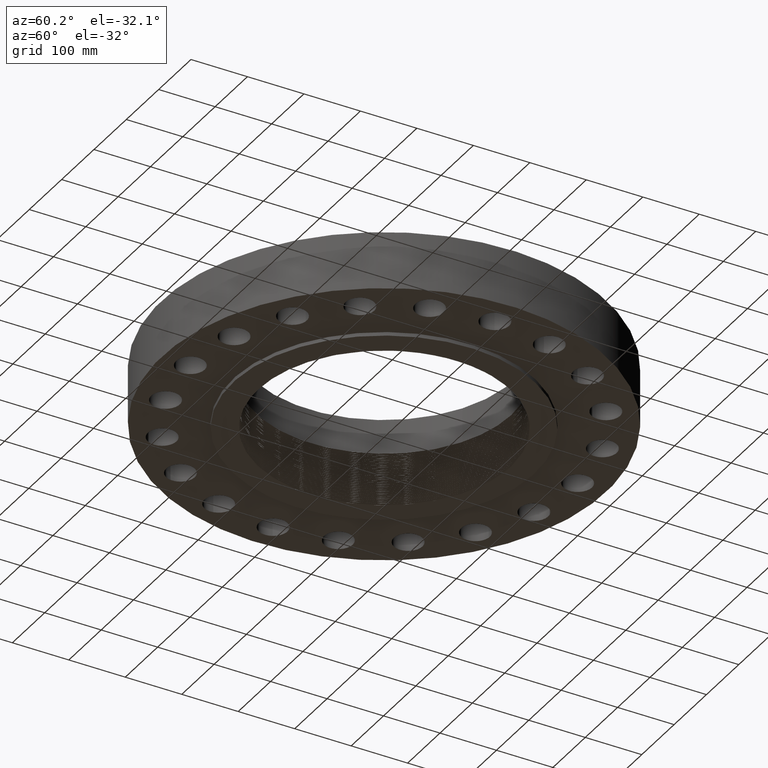
[diagram: clean part render]
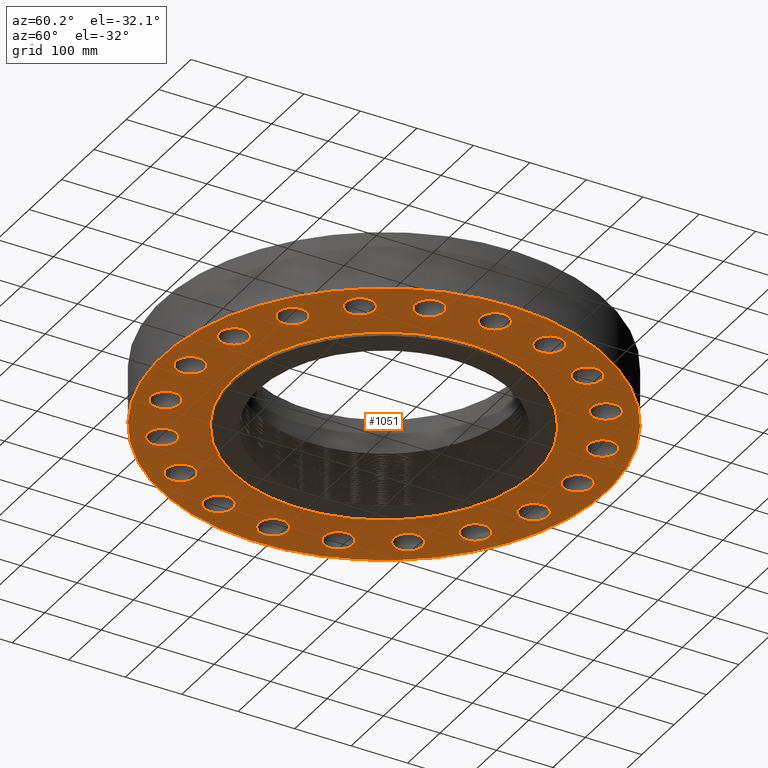
[diagram: same view with one face highlighted and labeled with its STEP entity id]
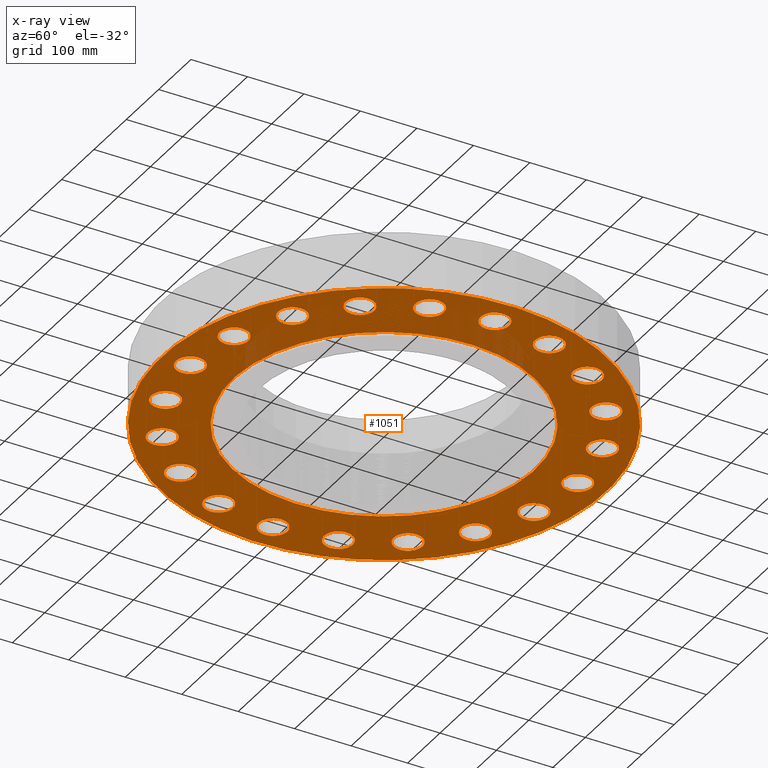
[diagram: x-ray of the same camera — body ghosted, the highlighted face saturated]
A machine part, auxiliary view. The second image highlights one B-rep face of the part: STEP entity #1051.
The next image is the same camera in x-ray: the body ghosted, the highlighted face saturated — about 0% of this face is hidden behind the body in this view.
In plain terms, the highlighted planar face has unit normal (0, 0, -1).
Its self-contained STEP definition (entity closure, byte-faithful):
#408=AXIS2_PLACEMENT_3D('Circle Axis2P3D',#406,#407,$) ;
#434=AXIS2_PLACEMENT_3D('Circle Axis2P3D',#432,#433,$) ;
#456=AXIS2_PLACEMENT_3D('Circle Axis2P3D',#454,#455,$) ;
#491=AXIS2_PLACEMENT_3D('Circle Axis2P3D',#489,#490,$) ;
#663=AXIS2_PLACEMENT_3D('Circle Axis2P3D',#661,#662,$) ;
#682=AXIS2_PLACEMENT_3D('Circle Axis2P3D',#680,#681,$) ;
#695=AXIS2_PLACEMENT_3D('Plane Axis2P3D',#692,#693,#694) ;
#711=AXIS2_PLACEMENT_3D('Circle Axis2P3D',#709,#710,$) ;
#720=AXIS2_PLACEMENT_3D('Circle Axis2P3D',#718,#719,$) ;
#729=AXIS2_PLACEMENT_3D('Circle Axis2P3D',#727,#728,$) ;
#738=AXIS2_PLACEMENT_3D('Circle Axis2P3D',#736,#737,$) ;
#747=AXIS2_PLACEMENT_3D('Circle Axis2P3D',#745,#746,$) ;
#756=AXIS2_PLACEMENT_3D('Circle Axis2P3D',#754,#755,$) ;
#765=AXIS2_PLACEMENT_3D('Circle Axis2P3D',#763,#764,$) ;
#774=AXIS2_PLACEMENT_3D('Circle Axis2P3D',#772,#773,$) ;
#783=AXIS2_PLACEMENT_3D('Circle Axis2P3D',#781,#782,$) ;
#792=AXIS2_PLACEMENT_3D('Circle Axis2P3D',#790,#791,$) ;
#801=AXIS2_PLACEMENT_3D('Circle Axis2P3D',#799,#800,$) ;
#810=AXIS2_PLACEMENT_3D('Circle Axis2P3D',#808,#809,$) ;
#819=AXIS2_PLACEMENT_3D('Circle Axis2P3D',#817,#818,$) ;
#828=AXIS2_PLACEMENT_3D('Circle Axis2P3D',#826,#827,$) ;
#837=AXIS2_PLACEMENT_3D('Circle Axis2P3D',#835,#836,$) ;
#846=AXIS2_PLACEMENT_3D('Circle Axis2P3D',#844,#845,$) ;
#855=AXIS2_PLACEMENT_3D('Circle Axis2P3D',#853,#854,$) ;
#864=AXIS2_PLACEMENT_3D('Circle Axis2P3D',#862,#863,$) ;
#873=AXIS2_PLACEMENT_3D('Circle Axis2P3D',#871,#872,$) ;
#882=AXIS2_PLACEMENT_3D('Circle Axis2P3D',#880,#881,$) ;
#891=AXIS2_PLACEMENT_3D('Circle Axis2P3D',#889,#890,$) ;
#900=AXIS2_PLACEMENT_3D('Circle Axis2P3D',#898,#899,$) ;
#909=AXIS2_PLACEMENT_3D('Circle Axis2P3D',#907,#908,$) ;
#918=AXIS2_PLACEMENT_3D('Circle Axis2P3D',#916,#917,$) ;
#927=AXIS2_PLACEMENT_3D('Circle Axis2P3D',#925,#926,$) ;
#936=AXIS2_PLACEMENT_3D('Circle Axis2P3D',#934,#935,$) ;
#945=AXIS2_PLACEMENT_3D('Circle Axis2P3D',#943,#944,$) ;
#954=AXIS2_PLACEMENT_3D('Circle Axis2P3D',#952,#953,$) ;
#963=AXIS2_PLACEMENT_3D('Circle Axis2P3D',#961,#962,$) ;
#972=AXIS2_PLACEMENT_3D('Circle Axis2P3D',#970,#971,$) ;
#981=AXIS2_PLACEMENT_3D('Circle Axis2P3D',#979,#980,$) ;
#990=AXIS2_PLACEMENT_3D('Circle Axis2P3D',#988,#989,$) ;
#999=AXIS2_PLACEMENT_3D('Circle Axis2P3D',#997,#998,$) ;
#1008=AXIS2_PLACEMENT_3D('Circle Axis2P3D',#1006,#1007,$) ;
#1017=AXIS2_PLACEMENT_3D('Circle Axis2P3D',#1015,#1016,$) ;
#1026=AXIS2_PLACEMENT_3D('Circle Axis2P3D',#1024,#1025,$) ;
#1035=AXIS2_PLACEMENT_3D('Circle Axis2P3D',#1033,#1034,$) ;
#1044=AXIS2_PLACEMENT_3D('Circle Axis2P3D',#1042,#1043,$) ;
#401=CARTESIAN_POINT('Vertex',(12.6224174382,0.479425538606,0.)) ;
#406=CARTESIAN_POINT('Axis2P3D Location',(13.5000000001,0.,0.)) ;
#410=CARTESIAN_POINT('Vertex',(14.3775825619,-0.479425538606,0.)) ;
#432=CARTESIAN_POINT('Axis2P3D Location',(13.5000000001,0.,0.)) ;
#454=CARTESIAN_POINT('Axis2P3D Location',(0.,0.,1.67844740731E-015)) ;
#458=CARTESIAN_POINT('Vertex',(-7.43109584839,-13.6025297094,1.67844740731E-015)) ;
#460=CARTESIAN_POINT('Vertex',(7.43109584839,13.6025297094,1.67844740731E-015)) ;
#489=CARTESIAN_POINT('Axis2P3D Location',(0.,0.,1.67844740731E-015)) ;
#658=CARTESIAN_POINT('Vertex',(-5.03396815536,-9.21461689989,1.1189649382E-015)) ;
#661=CARTESIAN_POINT('Axis2P3D Location',(0.,0.,1.1189649382E-015)) ;
#665=CARTESIAN_POINT('Vertex',(5.03396815536,9.21461689989,1.1189649382E-015)) ;
#680=CARTESIAN_POINT('Axis2P3D Location',(0.,0.,1.1189649382E-015)) ;
#692=CARTESIAN_POINT('Axis2P3D Location',(0.,10.5,0.)) ;
#709=CARTESIAN_POINT('Axis2P3D Location',(12.83926297,-4.17172942408,0.)) ;
#713=CARTESIAN_POINT('Vertex',(12.1527829949,-3.44458071592,0.)) ;
#715=CARTESIAN_POINT('Vertex',(13.5257429451,-4.89887813224,0.)) ;
#718=CARTESIAN_POINT('Axis2P3D Location',(12.83926297,-4.17172942408,0.)) ;
#727=CARTESIAN_POINT('Axis2P3D Location',(10.9217294241,-7.93510090598,0.)) ;
#731=CARTESIAN_POINT('Vertex',(10.4935494787,-7.03140741016,0.)) ;
#733=CARTESIAN_POINT('Vertex',(11.3499093695,-8.8387944018,-3.35689481461E-015)) ;
#736=CARTESIAN_POINT('Axis2P3D Location',(10.9217294241,-7.93510090598,0.)) ;
#745=CARTESIAN_POINT('Axis2P3D Location',(7.93510090598,-10.9217294241,0.)) ;
#749=CARTESIAN_POINT('Vertex',(7.8071342267,-9.9299509564,0.)) ;
#751=CARTESIAN_POINT('Vertex',(8.06306758526,-11.9135078918,0.)) ;
#754=CARTESIAN_POINT('Axis2P3D Location',(7.93510090598,-10.9217294241,0.)) ;
#763=CARTESIAN_POINT('Axis2P3D Location',(4.17172942408,-12.83926297,0.)) ;
#767=CARTESIAN_POINT('Vertex',(4.35650228106,-11.856481717,0.)) ;
#769=CARTESIAN_POINT('Vertex',(3.9869565671,-13.8220442231,0.)) ;
#772=CARTESIAN_POINT('Axis2P3D Location',(4.17172942408,-12.83926297,0.)) ;
#781=CARTESIAN_POINT('Axis2P3D Location',(2.09805925913E-015,-13.5000000001,0.)) ;
#785=CARTESIAN_POINT('Vertex',(0.479425538606,-12.6224174382,0.)) ;
#787=CARTESIAN_POINT('Vertex',(-0.479425538606,-14.3775825619,0.)) ;
#790=CARTESIAN_POINT('Axis2P3D Location',(1.95818864186E-015,-13.5000000001,0.)) ;
#799=CARTESIAN_POINT('Axis2P3D Location',(-4.17172942408,-12.83926297,0.)) ;
#803=CARTESIAN_POINT('Vertex',(-3.44458071592,-12.1527829949,0.)) ;
#805=CARTESIAN_POINT('Vertex',(-4.89887813224,-13.5257429451,0.)) ;
#808=CARTESIAN_POINT('Axis2P3D Location',(-4.17172942408,-12.83926297,0.)) ;
#817=CARTESIAN_POINT('Axis2P3D Location',(-7.93510090598,-10.9217294241,0.)) ;
#821=CARTESIAN_POINT('Vertex',(-7.03140741016,-10.4935494787,0.)) ;
#823=CARTESIAN_POINT('Vertex',(-8.8387944018,-11.3499093695,0.)) ;
#826=CARTESIAN_POINT('Axis2P3D Location',(-7.93510090598,-10.9217294241,0.)) ;
#835=CARTESIAN_POINT('Axis2P3D Location',(-10.9217294241,-7.93510090598,0.)) ;
#839=CARTESIAN_POINT('Vertex',(-9.9299509564,-7.8071342267,0.)) ;
#841=CARTESIAN_POINT('Vertex',(-11.9135078918,-8.06306758526,0.)) ;
#844=CARTESIAN_POINT('Axis2P3D Location',(-10.9217294241,-7.93510090598,0.)) ;
#853=CARTESIAN_POINT('Axis2P3D Location',(-12.83926297,-4.17172942408,0.)) ;
#857=CARTESIAN_POINT('Vertex',(-11.856481717,-4.35650228106,0.)) ;
#859=CARTESIAN_POINT('Vertex',(-13.8220442231,-3.9869565671,0.)) ;
#862=CARTESIAN_POINT('Axis2P3D Location',(-12.83926297,-4.17172942408,0.)) ;
#871=CARTESIAN_POINT('Axis2P3D Location',(-13.5000000001,-6.71378962923E-015,0.)) ;
#875=CARTESIAN_POINT('Vertex',(-12.6224174382,-0.479425538606,0.)) ;
#877=CARTESIAN_POINT('Vertex',(-14.3775825619,0.479425538606,0.)) ;
#880=CARTESIAN_POINT('Axis2P3D Location',(-13.5000000001,-6.71378962923E-015,0.)) ;
#889=CARTESIAN_POINT('Axis2P3D Location',(-12.83926297,4.17172942408,0.)) ;
#893=CARTESIAN_POINT('Vertex',(-12.1527829949,3.44458071592,0.)) ;
#895=CARTESIAN_POINT('Vertex',(-13.5257429451,4.89887813224,0.)) ;
#898=CARTESIAN_POINT('Axis2P3D Location',(-12.83926297,4.17172942408,0.)) ;
#907=CARTESIAN_POINT('Axis2P3D Location',(-10.9217294241,7.93510090598,0.)) ;
#911=CARTESIAN_POINT('Vertex',(-10.4935494787,7.03140741016,0.)) ;
#913=CARTESIAN_POINT('Vertex',(-11.3499093695,8.8387944018,-3.35689481461E-015)) ;
#916=CARTESIAN_POINT('Axis2P3D Location',(-10.9217294241,7.93510090598,0.)) ;
#925=CARTESIAN_POINT('Axis2P3D Location',(-7.93510090598,10.9217294241,0.)) ;
#929=CARTESIAN_POINT('Vertex',(-7.8071342267,9.9299509564,0.)) ;
#931=CARTESIAN_POINT('Vertex',(-8.06306758526,11.9135078918,0.)) ;
#934=CARTESIAN_POINT('Axis2P3D Location',(-7.93510090598,10.9217294241,0.)) ;
#943=CARTESIAN_POINT('Axis2P3D Location',(-4.17172942408,12.83926297,0.)) ;
#947=CARTESIAN_POINT('Vertex',(-4.35650228106,11.856481717,0.)) ;
#949=CARTESIAN_POINT('Vertex',(-3.9869565671,13.8220442231,-3.35689481461E-015)) ;
#952=CARTESIAN_POINT('Axis2P3D Location',(-4.17172942408,12.83926297,0.)) ;
#961=CARTESIAN_POINT('Axis2P3D Location',(-1.25883555548E-014,13.5000000001,0.)) ;
#965=CARTESIAN_POINT('Vertex',(-0.479425538606,12.6224174382,0.)) ;
#967=CARTESIAN_POINT('Vertex',(0.479425538606,14.3775825619,0.)) ;
#970=CARTESIAN_POINT('Axis2P3D Location',(-1.16092612339E-014,13.5000000001,0.)) ;
#979=CARTESIAN_POINT('Axis2P3D Location',(4.17172942408,12.83926297,0.)) ;
#983=CARTESIAN_POINT('Vertex',(3.44458071592,12.1527829949,0.)) ;
#985=CARTESIAN_POINT('Vertex',(4.89887813224,13.5257429451,-3.35689481461E-015)) ;
#988=CARTESIAN_POINT('Axis2P3D Location',(4.17172942408,12.83926297,0.)) ;
#997=CARTESIAN_POINT('Axis2P3D Location',(7.93510090598,10.9217294241,0.)) ;
#1001=CARTESIAN_POINT('Vertex',(7.03140741016,10.4935494787,0.)) ;
#1003=CARTESIAN_POINT('Vertex',(8.8387944018,11.3499093695,0.)) ;
#1006=CARTESIAN_POINT('Axis2P3D Location',(7.93510090598,10.9217294241,0.)) ;
#1015=CARTESIAN_POINT('Axis2P3D Location',(10.9217294241,7.93510090598,0.)) ;
#1019=CARTESIAN_POINT('Vertex',(9.9299509564,7.8071342267,0.)) ;
#1021=CARTESIAN_POINT('Vertex',(11.9135078918,8.06306758526,0.)) ;
#1024=CARTESIAN_POINT('Axis2P3D Location',(10.9217294241,7.93510090598,0.)) ;
#1033=CARTESIAN_POINT('Axis2P3D Location',(12.83926297,4.17172942408,0.)) ;
#1037=CARTESIAN_POINT('Vertex',(11.856481717,4.35650228106,0.)) ;
#1039=CARTESIAN_POINT('Vertex',(13.8220442231,3.9869565671,-3.35689481461E-015)) ;
#1042=CARTESIAN_POINT('Axis2P3D Location',(12.83926297,4.17172942408,0.)) ;
#407=DIRECTION('Axis2P3D Direction',(0.,-0.,-0.0393700787402)) ;
#433=DIRECTION('Axis2P3D Direction',(0.,-0.,-0.0393700787402)) ;
#455=DIRECTION('Axis2P3D Direction',(0.,0.,-0.0393700787402)) ;
#490=DIRECTION('Axis2P3D Direction',(0.,0.,-0.0393700787402)) ;
#662=DIRECTION('Axis2P3D Direction',(0.,0.,-0.0393700787402)) ;
#681=DIRECTION('Axis2P3D Direction',(0.,0.,-0.0393700787402)) ;
#693=DIRECTION('Axis2P3D Direction',(0.,0.,-0.0393700787402)) ;
#694=DIRECTION('Axis2P3D XDirection',(0.0393700787402,0.,0.)) ;
#710=DIRECTION('Axis2P3D Direction',(0.,0.,-0.0393700787402)) ;
#719=DIRECTION('Axis2P3D Direction',(0.,0.,-0.0393700787402)) ;
#728=DIRECTION('Axis2P3D Direction',(0.,0.,-0.0393700787402)) ;
#737=DIRECTION('Axis2P3D Direction',(0.,0.,-0.0393700787402)) ;
#746=DIRECTION('Axis2P3D Direction',(0.,0.,-0.0393700787402)) ;
#755=DIRECTION('Axis2P3D Direction',(0.,0.,-0.0393700787402)) ;
#764=DIRECTION('Axis2P3D Direction',(0.,0.,-0.0393700787402)) ;
#773=DIRECTION('Axis2P3D Direction',(0.,0.,-0.0393700787402)) ;
#782=DIRECTION('Axis2P3D Direction',(0.,0.,-0.0393700787402)) ;
#791=DIRECTION('Axis2P3D Direction',(0.,0.,-0.0393700787402)) ;
#800=DIRECTION('Axis2P3D Direction',(0.,0.,-0.0393700787402)) ;
#809=DIRECTION('Axis2P3D Direction',(0.,0.,-0.0393700787402)) ;
#818=DIRECTION('Axis2P3D Direction',(0.,0.,-0.0393700787402)) ;
#827=DIRECTION('Axis2P3D Direction',(0.,0.,-0.0393700787402)) ;
#836=DIRECTION('Axis2P3D Direction',(0.,0.,-0.0393700787402)) ;
#845=DIRECTION('Axis2P3D Direction',(0.,0.,-0.0393700787402)) ;
#854=DIRECTION('Axis2P3D Direction',(0.,0.,-0.0393700787402)) ;
#863=DIRECTION('Axis2P3D Direction',(0.,0.,-0.0393700787402)) ;
#872=DIRECTION('Axis2P3D Direction',(0.,0.,-0.0393700787402)) ;
#881=DIRECTION('Axis2P3D Direction',(0.,0.,-0.0393700787402)) ;
#890=DIRECTION('Axis2P3D Direction',(0.,0.,-0.0393700787402)) ;
#899=DIRECTION('Axis2P3D Direction',(0.,0.,-0.0393700787402)) ;
#908=DIRECTION('Axis2P3D Direction',(0.,0.,-0.0393700787402)) ;
#917=DIRECTION('Axis2P3D Direction',(0.,0.,-0.0393700787402)) ;
#926=DIRECTION('Axis2P3D Direction',(0.,0.,-0.0393700787402)) ;
#935=DIRECTION('Axis2P3D Direction',(0.,0.,-0.0393700787402)) ;
#944=DIRECTION('Axis2P3D Direction',(0.,0.,-0.0393700787402)) ;
#953=DIRECTION('Axis2P3D Direction',(0.,0.,-0.0393700787402)) ;
#962=DIRECTION('Axis2P3D Direction',(0.,0.,-0.0393700787402)) ;
#971=DIRECTION('Axis2P3D Direction',(0.,0.,-0.0393700787402)) ;
#980=DIRECTION('Axis2P3D Direction',(0.,0.,-0.0393700787402)) ;
#989=DIRECTION('Axis2P3D Direction',(0.,0.,-0.0393700787402)) ;
#998=DIRECTION('Axis2P3D Direction',(0.,0.,-0.0393700787402)) ;
#1007=DIRECTION('Axis2P3D Direction',(0.,0.,-0.0393700787402)) ;
#1016=DIRECTION('Axis2P3D Direction',(0.,0.,-0.0393700787402)) ;
#1025=DIRECTION('Axis2P3D Direction',(0.,0.,-0.0393700787402)) ;
#1034=DIRECTION('Axis2P3D Direction',(0.,0.,-0.0393700787402)) ;
#1043=DIRECTION('Axis2P3D Direction',(0.,0.,-0.0393700787402)) ;
#698=ORIENTED_EDGE('',*,*,#462,.T.) ;
#699=ORIENTED_EDGE('',*,*,#493,.T.) ;
#702=ORIENTED_EDGE('',*,*,#436,.F.) ;
#703=ORIENTED_EDGE('',*,*,#412,.F.) ;
#706=ORIENTED_EDGE('',*,*,#684,.F.) ;
#707=ORIENTED_EDGE('',*,*,#667,.F.) ;
#724=ORIENTED_EDGE('',*,*,#717,.F.) ;
#725=ORIENTED_EDGE('',*,*,#722,.F.) ;
#742=ORIENTED_EDGE('',*,*,#735,.F.) ;
#743=ORIENTED_EDGE('',*,*,#740,.F.) ;
#760=ORIENTED_EDGE('',*,*,#753,.F.) ;
#761=ORIENTED_EDGE('',*,*,#758,.F.) ;
#778=ORIENTED_EDGE('',*,*,#771,.F.) ;
#779=ORIENTED_EDGE('',*,*,#776,.F.) ;
#796=ORIENTED_EDGE('',*,*,#789,.F.) ;
#797=ORIENTED_EDGE('',*,*,#794,.F.) ;
#814=ORIENTED_EDGE('',*,*,#807,.F.) ;
#815=ORIENTED_EDGE('',*,*,#812,.F.) ;
#832=ORIENTED_EDGE('',*,*,#825,.F.) ;
#833=ORIENTED_EDGE('',*,*,#830,.F.) ;
#850=ORIENTED_EDGE('',*,*,#843,.F.) ;
#851=ORIENTED_EDGE('',*,*,#848,.F.) ;
#868=ORIENTED_EDGE('',*,*,#861,.F.) ;
#869=ORIENTED_EDGE('',*,*,#866,.F.) ;
#886=ORIENTED_EDGE('',*,*,#879,.F.) ;
#887=ORIENTED_EDGE('',*,*,#884,.F.) ;
#904=ORIENTED_EDGE('',*,*,#897,.F.) ;
#905=ORIENTED_EDGE('',*,*,#902,.F.) ;
#922=ORIENTED_EDGE('',*,*,#915,.F.) ;
#923=ORIENTED_EDGE('',*,*,#920,.F.) ;
#940=ORIENTED_EDGE('',*,*,#933,.F.) ;
#941=ORIENTED_EDGE('',*,*,#938,.F.) ;
#958=ORIENTED_EDGE('',*,*,#951,.F.) ;
#959=ORIENTED_EDGE('',*,*,#956,.F.) ;
#976=ORIENTED_EDGE('',*,*,#969,.F.) ;
#977=ORIENTED_EDGE('',*,*,#974,.F.) ;
#994=ORIENTED_EDGE('',*,*,#987,.F.) ;
#995=ORIENTED_EDGE('',*,*,#992,.F.) ;
#1012=ORIENTED_EDGE('',*,*,#1005,.F.) ;
#1013=ORIENTED_EDGE('',*,*,#1010,.F.) ;
#1030=ORIENTED_EDGE('',*,*,#1023,.F.) ;
#1031=ORIENTED_EDGE('',*,*,#1028,.F.) ;
#1048=ORIENTED_EDGE('',*,*,#1041,.F.) ;
#1049=ORIENTED_EDGE('',*,*,#1046,.F.) ;
#704=FACE_BOUND('',#701,.T.) ;
#708=FACE_BOUND('',#705,.T.) ;
#726=FACE_BOUND('',#723,.T.) ;
#744=FACE_BOUND('',#741,.T.) ;
#762=FACE_BOUND('',#759,.T.) ;
#780=FACE_BOUND('',#777,.T.) ;
#798=FACE_BOUND('',#795,.T.) ;
#816=FACE_BOUND('',#813,.T.) ;
#834=FACE_BOUND('',#831,.T.) ;
#852=FACE_BOUND('',#849,.T.) ;
#870=FACE_BOUND('',#867,.T.) ;
#888=FACE_BOUND('',#885,.T.) ;
#906=FACE_BOUND('',#903,.T.) ;
#924=FACE_BOUND('',#921,.T.) ;
#942=FACE_BOUND('',#939,.T.) ;
#960=FACE_BOUND('',#957,.T.) ;
#978=FACE_BOUND('',#975,.T.) ;
#996=FACE_BOUND('',#993,.T.) ;
#1014=FACE_BOUND('',#1011,.T.) ;
#1032=FACE_BOUND('',#1029,.T.) ;
#1050=FACE_BOUND('',#1047,.T.) ;
#1051=ADVANCED_FACE('PartBody',(#700,#704,#708,#726,#744,#762,#780,#798,#816,#834,#852,#870,#888,#906,#924,#942,#960,#978,#996,#1014,#1032,#1050),#696,.T.) ;
#409=CIRCLE('generated circle',#408,1.) ;
#435=CIRCLE('generated circle',#434,1.) ;
#457=CIRCLE('generated circle',#456,15.5000000001) ;
#492=CIRCLE('generated circle',#491,15.5000000001) ;
#664=CIRCLE('generated circle',#663,10.5) ;
#683=CIRCLE('generated circle',#682,10.5) ;
#712=CIRCLE('generated circle',#711,1.) ;
#721=CIRCLE('generated circle',#720,1.) ;
#730=CIRCLE('generated circle',#729,1.) ;
#739=CIRCLE('generated circle',#738,1.) ;
#748=CIRCLE('generated circle',#747,1.) ;
#757=CIRCLE('generated circle',#756,1.) ;
#766=CIRCLE('generated circle',#765,1.) ;
#775=CIRCLE('generated circle',#774,1.) ;
#784=CIRCLE('generated circle',#783,1.) ;
#793=CIRCLE('generated circle',#792,1.) ;
#802=CIRCLE('generated circle',#801,1.) ;
#811=CIRCLE('generated circle',#810,1.) ;
#820=CIRCLE('generated circle',#819,1.) ;
#829=CIRCLE('generated circle',#828,1.) ;
#838=CIRCLE('generated circle',#837,1.) ;
#847=CIRCLE('generated circle',#846,1.) ;
#856=CIRCLE('generated circle',#855,1.) ;
#865=CIRCLE('generated circle',#864,1.) ;
#874=CIRCLE('generated circle',#873,1.) ;
#883=CIRCLE('generated circle',#882,1.) ;
#892=CIRCLE('generated circle',#891,1.) ;
#901=CIRCLE('generated circle',#900,1.) ;
#910=CIRCLE('generated circle',#909,1.) ;
#919=CIRCLE('generated circle',#918,1.) ;
#928=CIRCLE('generated circle',#927,1.) ;
#937=CIRCLE('generated circle',#936,1.) ;
#946=CIRCLE('generated circle',#945,1.) ;
#955=CIRCLE('generated circle',#954,1.) ;
#964=CIRCLE('generated circle',#963,1.) ;
#973=CIRCLE('generated circle',#972,1.) ;
#982=CIRCLE('generated circle',#981,1.) ;
#991=CIRCLE('generated circle',#990,1.) ;
#1000=CIRCLE('generated circle',#999,1.) ;
#1009=CIRCLE('generated circle',#1008,1.) ;
#1018=CIRCLE('generated circle',#1017,1.) ;
#1027=CIRCLE('generated circle',#1026,1.) ;
#1036=CIRCLE('generated circle',#1035,1.) ;
#1045=CIRCLE('generated circle',#1044,1.) ;
#412=EDGE_CURVE('',#402,#411,#409,.T.) ;
#436=EDGE_CURVE('',#411,#402,#435,.T.) ;
#462=EDGE_CURVE('',#459,#461,#457,.T.) ;
#493=EDGE_CURVE('',#461,#459,#492,.T.) ;
#667=EDGE_CURVE('',#659,#666,#664,.T.) ;
#684=EDGE_CURVE('',#666,#659,#683,.T.) ;
#717=EDGE_CURVE('',#714,#716,#712,.T.) ;
#722=EDGE_CURVE('',#716,#714,#721,.T.) ;
#735=EDGE_CURVE('',#732,#734,#730,.T.) ;
#740=EDGE_CURVE('',#734,#732,#739,.T.) ;
#753=EDGE_CURVE('',#750,#752,#748,.T.) ;
#758=EDGE_CURVE('',#752,#750,#757,.T.) ;
#771=EDGE_CURVE('',#768,#770,#766,.T.) ;
#776=EDGE_CURVE('',#770,#768,#775,.T.) ;
#789=EDGE_CURVE('',#786,#788,#784,.T.) ;
#794=EDGE_CURVE('',#788,#786,#793,.T.) ;
#807=EDGE_CURVE('',#804,#806,#802,.T.) ;
#812=EDGE_CURVE('',#806,#804,#811,.T.) ;
#825=EDGE_CURVE('',#822,#824,#820,.T.) ;
#830=EDGE_CURVE('',#824,#822,#829,.T.) ;
#843=EDGE_CURVE('',#840,#842,#838,.T.) ;
#848=EDGE_CURVE('',#842,#840,#847,.T.) ;
#861=EDGE_CURVE('',#858,#860,#856,.T.) ;
#866=EDGE_CURVE('',#860,#858,#865,.T.) ;
#879=EDGE_CURVE('',#876,#878,#874,.T.) ;
#884=EDGE_CURVE('',#878,#876,#883,.T.) ;
#897=EDGE_CURVE('',#894,#896,#892,.T.) ;
#902=EDGE_CURVE('',#896,#894,#901,.T.) ;
#915=EDGE_CURVE('',#912,#914,#910,.T.) ;
#920=EDGE_CURVE('',#914,#912,#919,.T.) ;
#933=EDGE_CURVE('',#930,#932,#928,.T.) ;
#938=EDGE_CURVE('',#932,#930,#937,.T.) ;
#951=EDGE_CURVE('',#948,#950,#946,.T.) ;
#956=EDGE_CURVE('',#950,#948,#955,.T.) ;
#969=EDGE_CURVE('',#966,#968,#964,.T.) ;
#974=EDGE_CURVE('',#968,#966,#973,.T.) ;
#987=EDGE_CURVE('',#984,#986,#982,.T.) ;
#992=EDGE_CURVE('',#986,#984,#991,.T.) ;
#1005=EDGE_CURVE('',#1002,#1004,#1000,.T.) ;
#1010=EDGE_CURVE('',#1004,#1002,#1009,.T.) ;
#1023=EDGE_CURVE('',#1020,#1022,#1018,.T.) ;
#1028=EDGE_CURVE('',#1022,#1020,#1027,.T.) ;
#1041=EDGE_CURVE('',#1038,#1040,#1036,.T.) ;
#1046=EDGE_CURVE('',#1040,#1038,#1045,.T.) ;
#697=EDGE_LOOP('',(#698,#699)) ;
#701=EDGE_LOOP('',(#702,#703)) ;
#705=EDGE_LOOP('',(#706,#707)) ;
#723=EDGE_LOOP('',(#724,#725)) ;
#741=EDGE_LOOP('',(#742,#743)) ;
#759=EDGE_LOOP('',(#760,#761)) ;
#777=EDGE_LOOP('',(#778,#779)) ;
#795=EDGE_LOOP('',(#796,#797)) ;
#813=EDGE_LOOP('',(#814,#815)) ;
#831=EDGE_LOOP('',(#832,#833)) ;
#849=EDGE_LOOP('',(#850,#851)) ;
#867=EDGE_LOOP('',(#868,#869)) ;
#885=EDGE_LOOP('',(#886,#887)) ;
#903=EDGE_LOOP('',(#904,#905)) ;
#921=EDGE_LOOP('',(#922,#923)) ;
#939=EDGE_LOOP('',(#940,#941)) ;
#957=EDGE_LOOP('',(#958,#959)) ;
#975=EDGE_LOOP('',(#976,#977)) ;
#993=EDGE_LOOP('',(#994,#995)) ;
#1011=EDGE_LOOP('',(#1012,#1013)) ;
#1029=EDGE_LOOP('',(#1030,#1031)) ;
#1047=EDGE_LOOP('',(#1048,#1049)) ;
#700=FACE_OUTER_BOUND('',#697,.T.) ;
#696=PLANE('',#695) ;
#402=VERTEX_POINT('',#401) ;
#411=VERTEX_POINT('',#410) ;
#459=VERTEX_POINT('',#458) ;
#461=VERTEX_POINT('',#460) ;
#659=VERTEX_POINT('',#658) ;
#666=VERTEX_POINT('',#665) ;
#714=VERTEX_POINT('',#713) ;
#716=VERTEX_POINT('',#715) ;
#732=VERTEX_POINT('',#731) ;
#734=VERTEX_POINT('',#733) ;
#750=VERTEX_POINT('',#749) ;
#752=VERTEX_POINT('',#751) ;
#768=VERTEX_POINT('',#767) ;
#770=VERTEX_POINT('',#769) ;
#786=VERTEX_POINT('',#785) ;
#788=VERTEX_POINT('',#787) ;
#804=VERTEX_POINT('',#803) ;
#806=VERTEX_POINT('',#805) ;
#822=VERTEX_POINT('',#821) ;
#824=VERTEX_POINT('',#823) ;
#840=VERTEX_POINT('',#839) ;
#842=VERTEX_POINT('',#841) ;
#858=VERTEX_POINT('',#857) ;
#860=VERTEX_POINT('',#859) ;
#876=VERTEX_POINT('',#875) ;
#878=VERTEX_POINT('',#877) ;
#894=VERTEX_POINT('',#893) ;
#896=VERTEX_POINT('',#895) ;
#912=VERTEX_POINT('',#911) ;
#914=VERTEX_POINT('',#913) ;
#930=VERTEX_POINT('',#929) ;
#932=VERTEX_POINT('',#931) ;
#948=VERTEX_POINT('',#947) ;
#950=VERTEX_POINT('',#949) ;
#966=VERTEX_POINT('',#965) ;
#968=VERTEX_POINT('',#967) ;
#984=VERTEX_POINT('',#983) ;
#986=VERTEX_POINT('',#985) ;
#1002=VERTEX_POINT('',#1001) ;
#1004=VERTEX_POINT('',#1003) ;
#1020=VERTEX_POINT('',#1019) ;
#1022=VERTEX_POINT('',#1021) ;
#1038=VERTEX_POINT('',#1037) ;
#1040=VERTEX_POINT('',#1039) ;